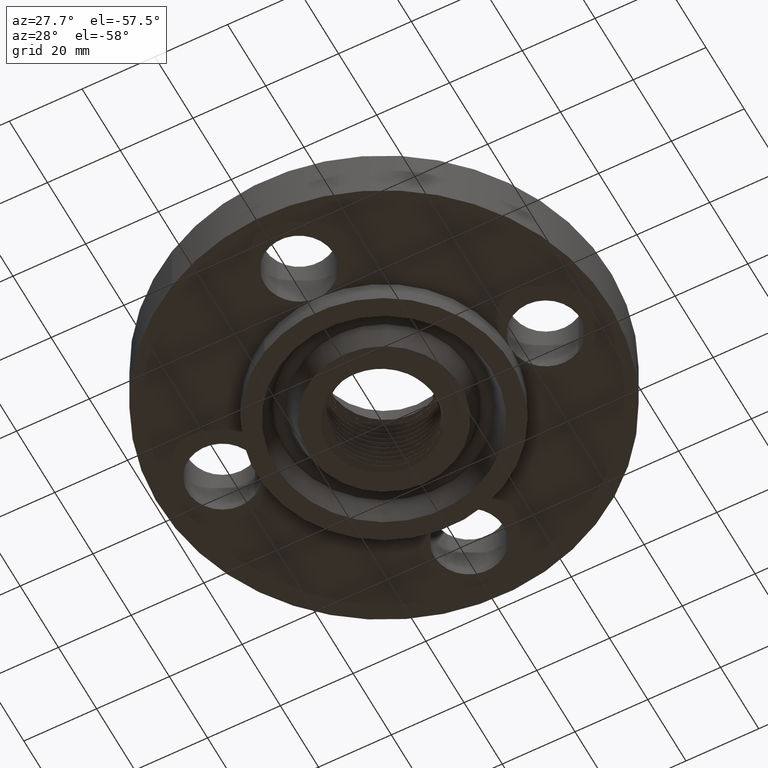
[diagram: clean part render]
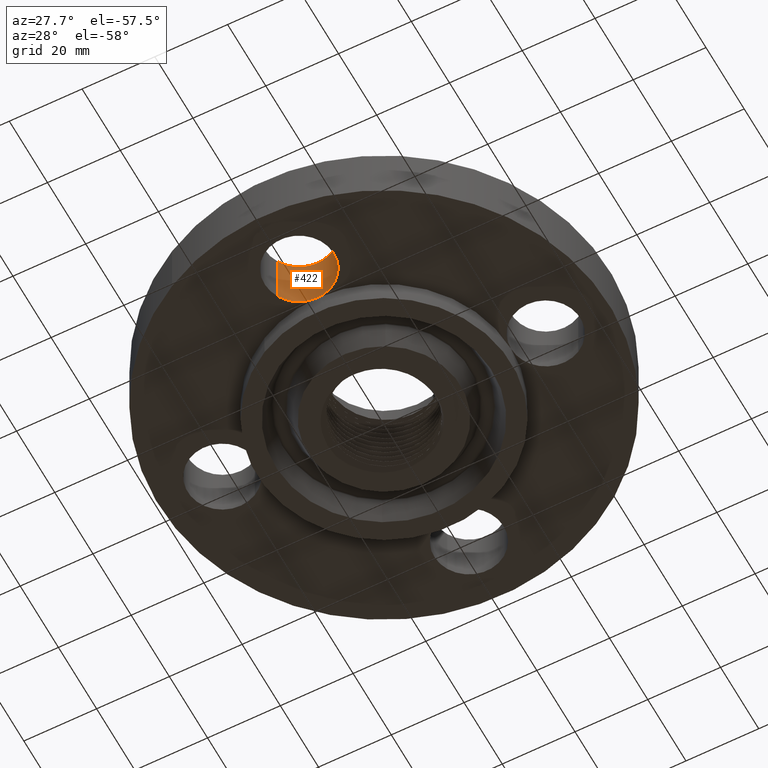
[diagram: same view with one face highlighted and labeled with its STEP entity id]
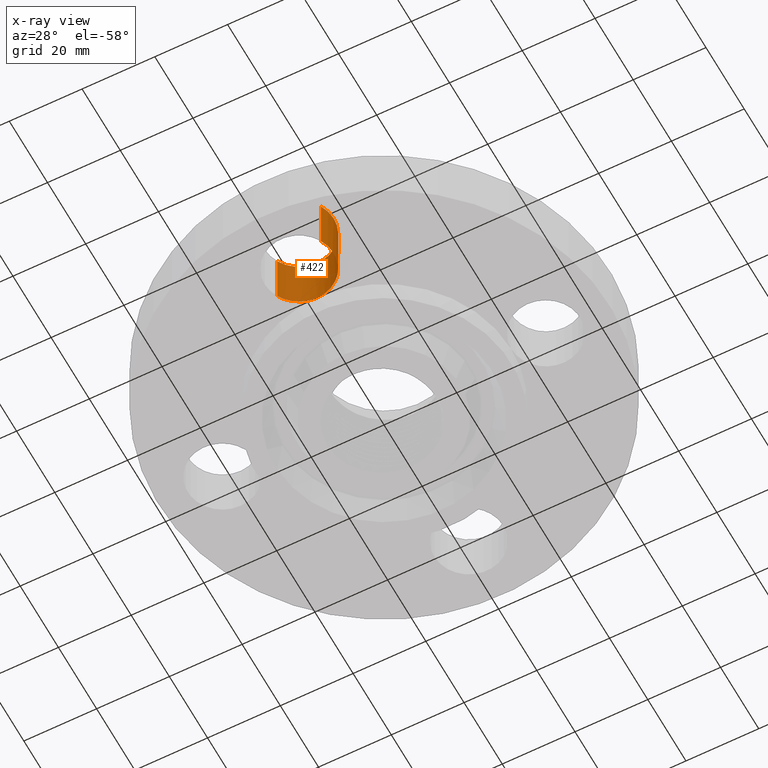
[diagram: x-ray of the same camera — body ghosted, the highlighted face saturated]
A machine part, auxiliary view. The second image highlights one B-rep face of the part: STEP entity #422.
The next image is the same camera in x-ray: the body ghosted, the highlighted face saturated — about 0% of this face is hidden behind the body in this view.
In plain terms, the highlighted cylindrical surface (partial cylindrical patch) has radius 9.525 mm, axis along (-0, 0, -1).
Its self-contained STEP definition (entity closure, byte-faithful):
#378=AXIS2_PLACEMENT_3D('Cylinder Axis2P3D',#375,#376,#377) ;
#391=AXIS2_PLACEMENT_3D('Circle Axis2P3D',#389,#390,$) ;
#398=AXIS2_PLACEMENT_3D('Circle Axis2P3D',#396,#397,$) ;
#412=AXIS2_PLACEMENT_3D('Circle Axis2P3D',#410,#411,$) ;
#375=CARTESIAN_POINT('Axis2P3D Location',(2.14313189852E-016,-1.75000000001,0.616062992128)) ;
#380=CARTESIAN_POINT('Line Origine',(-0.32909346071,-1.57021542303,0.310000000001)) ;
#384=CARTESIAN_POINT('Vertex',(-0.32909346071,-1.57021542303,0.)) ;
#386=CARTESIAN_POINT('Vertex',(-0.32909346071,-1.57021542303,0.620000000002)) ;
#389=CARTESIAN_POINT('Axis2P3D Location',(2.14313189852E-016,-1.75000000001,0.)) ;
#393=CARTESIAN_POINT('Vertex',(2.02112938519E-016,-1.37500000001,0.)) ;
#396=CARTESIAN_POINT('Axis2P3D Location',(2.14313189852E-016,-1.75000000001,0.)) ;
#400=CARTESIAN_POINT('Vertex',(0.32909346071,-1.92978457698,0.)) ;
#403=CARTESIAN_POINT('Line Origine',(0.32909346071,-1.92978457698,0.310000000001)) ;
#407=CARTESIAN_POINT('Vertex',(0.32909346071,-1.92978457698,0.620000000002)) ;
#410=CARTESIAN_POINT('Axis2P3D Location',(2.14313189852E-016,-1.75000000001,0.620000000002)) ;
#376=DIRECTION('Axis2P3D Direction',(-0.,0.,-0.0393700787402)) ;
#377=DIRECTION('Axis2P3D XDirection',(0.0345504945626,-0.0188750212049,-0.)) ;
#381=DIRECTION('Vector Direction',(0.,0.,-0.0393700787402)) ;
#390=DIRECTION('Axis2P3D Direction',(-0.,0.,-0.0393700787402)) ;
#397=DIRECTION('Axis2P3D Direction',(-0.,0.,-0.0393700787402)) ;
#404=DIRECTION('Vector Direction',(0.,0.,-0.0393700787402)) ;
#411=DIRECTION('Axis2P3D Direction',(-0.,0.,-0.0393700787402)) ;
#382=VECTOR('Line Direction',#381,0.0393700787402) ;
#405=VECTOR('Line Direction',#404,0.0393700787402) ;
#416=ORIENTED_EDGE('',*,*,#388,.F.) ;
#417=ORIENTED_EDGE('',*,*,#395,.T.) ;
#418=ORIENTED_EDGE('',*,*,#402,.T.) ;
#419=ORIENTED_EDGE('',*,*,#409,.T.) ;
#420=ORIENTED_EDGE('',*,*,#414,.F.) ;
#422=ADVANCED_FACE('PartBody',(#421),#379,.F.) ;
#392=CIRCLE('generated circle',#391,0.375000000001) ;
#399=CIRCLE('generated circle',#398,0.375000000001) ;
#413=CIRCLE('generated circle',#412,0.375000000001) ;
#379=CYLINDRICAL_SURFACE('generated cylinder',#378,0.375000000001) ;
#388=EDGE_CURVE('',#385,#387,#383,.F.) ;
#395=EDGE_CURVE('',#385,#394,#392,.T.) ;
#402=EDGE_CURVE('',#394,#401,#399,.T.) ;
#409=EDGE_CURVE('',#401,#408,#406,.F.) ;
#414=EDGE_CURVE('',#387,#408,#413,.T.) ;
#415=EDGE_LOOP('',(#416,#417,#418,#419,#420)) ;
#421=FACE_OUTER_BOUND('',#415,.T.) ;
#383=LINE('Line',#380,#382) ;
#406=LINE('Line',#403,#405) ;
#385=VERTEX_POINT('',#384) ;
#387=VERTEX_POINT('',#386) ;
#394=VERTEX_POINT('',#393) ;
#401=VERTEX_POINT('',#400) ;
#408=VERTEX_POINT('',#407) ;